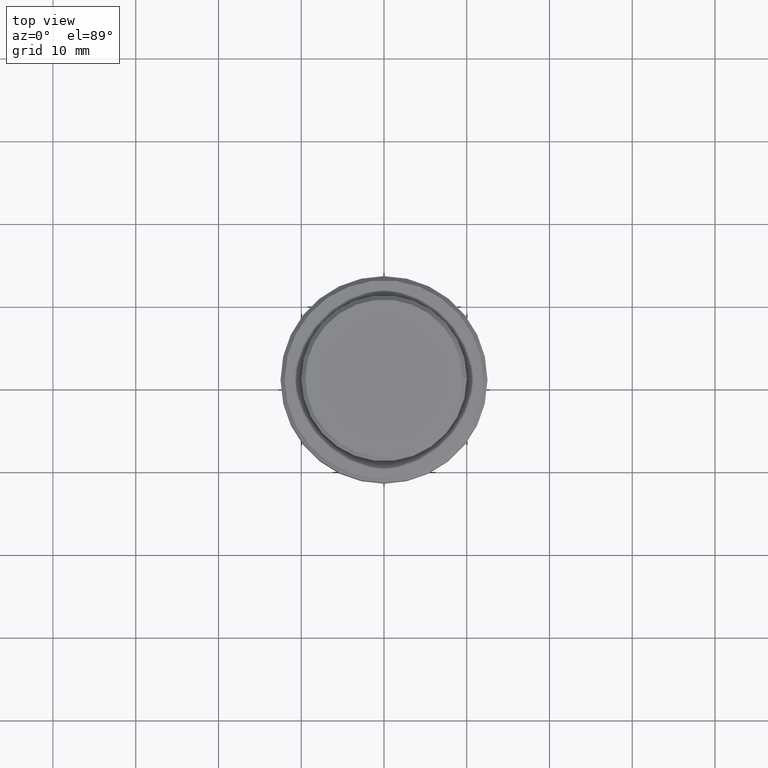
[diagram: clean part render]
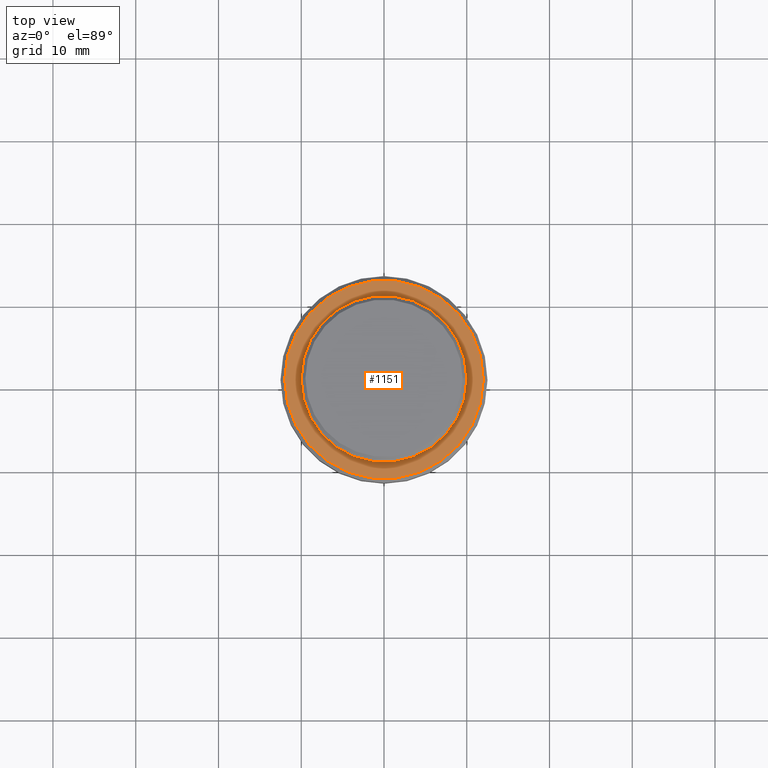
[diagram: same view with one face highlighted and labeled with its STEP entity id]
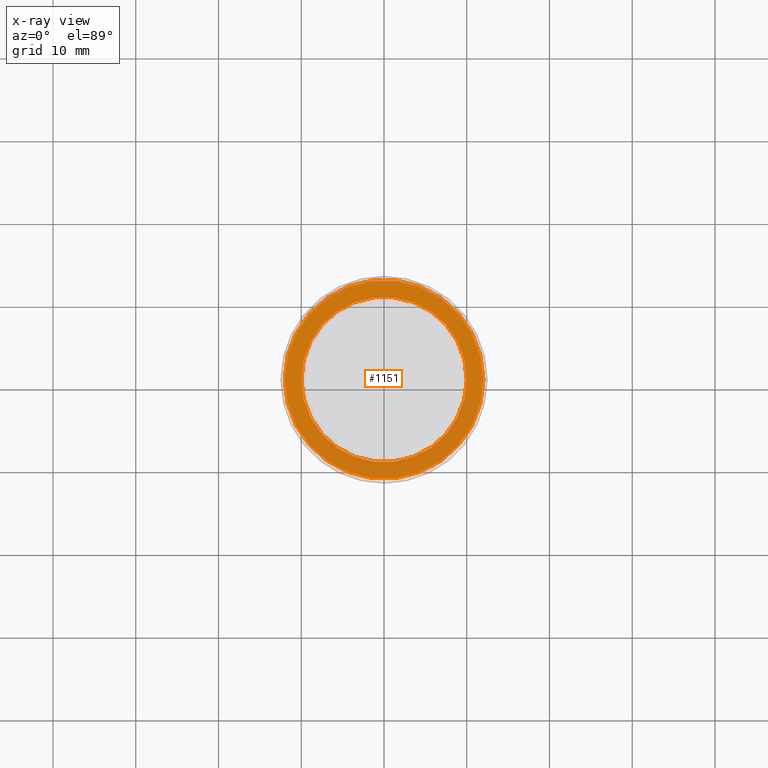
[diagram: x-ray of the same camera — body ghosted, the highlighted face saturated]
A machine part, top view. The second image highlights one B-rep face of the part: STEP entity #1151.
The next image is the same camera in x-ray: the body ghosted, the highlighted face saturated — about 0% of this face is hidden behind the body in this view.
In plain terms, the highlighted planar face has unit normal (0, -0, 1).
Its self-contained STEP definition (entity closure, byte-faithful):
#87 = DIRECTION ( 'NONE',  ( -0.000000000000000000, -0.000000000000000000, 1.000000000000000000 ) ) ;
#94 = AXIS2_PLACEMENT_3D ( 'NONE', #996, #1009, #1117 ) ;
#162 = ORIENTED_EDGE ( 'NONE', *, *, #849, .T. ) ;
#165 = VERTEX_POINT ( 'NONE', #1326 ) ;
#179 = ORIENTED_EDGE ( 'NONE', *, *, #1229, .T. ) ;
#245 = DIRECTION ( 'NONE',  ( -0.000000000000000000, -0.000000000000000000, 1.000000000000000000 ) ) ;
#310 = DIRECTION ( 'NONE',  ( 1.000000000000000000, 0.000000000000000000, 0.000000000000000000 ) ) ;
#337 = CARTESIAN_POINT ( 'NONE',  ( 0.000000000000000000, 0.000000000000000000, -9.000000000000000000 ) ) ;
#353 = ORIENTED_EDGE ( 'NONE', *, *, #357, .T. ) ;
#357 = EDGE_CURVE ( 'NONE', #403, #165, #1189, .T. ) ;
#373 = VERTEX_POINT ( 'NONE', #984 ) ;
#403 = VERTEX_POINT ( 'NONE', #1086 ) ;
#435 = EDGE_LOOP ( 'NONE', ( #353, #162 ) ) ;
#525 = CARTESIAN_POINT ( 'NONE',  ( 0.000000000000000000, 9.499999999999992895, -9.000000000000000000 ) ) ;
#651 = DIRECTION ( 'NONE',  ( 0.000000000000000000, -0.000000000000000000, 1.000000000000000000 ) ) ;
#666 = CARTESIAN_POINT ( 'NONE',  ( -11.99999999999999645, 0.000000000000000000, -9.000000000000000000 ) ) ;
#686 = DIRECTION ( 'NONE',  ( 1.000000000000000000, 0.000000000000000000, 0.000000000000000000 ) ) ;
#694 = EDGE_LOOP ( 'NONE', ( #1286, #179 ) ) ;
#746 = CIRCLE ( 'NONE', #1105, 11.99999999999999645 ) ;
#764 = DIRECTION ( 'NONE',  ( 1.000000000000000000, 0.000000000000000000, 0.000000000000000000 ) ) ;
#776 = DIRECTION ( 'NONE',  ( 1.000000000000000000, 0.000000000000000000, 0.000000000000000000 ) ) ;
#824 = EDGE_CURVE ( 'NONE', #825, #373, #746, .T. ) ;
#825 = VERTEX_POINT ( 'NONE', #666 ) ;
#849 = EDGE_CURVE ( 'NONE', #165, #403, #1398, .T. ) ;
#853 = AXIS2_PLACEMENT_3D ( 'NONE', #525, #651, #310 ) ;
#880 = FACE_OUTER_BOUND ( 'NONE', #694, .T. ) ;
#928 = CIRCLE ( 'NONE', #1076, 11.99999999999999645 ) ;
#979 = AXIS2_PLACEMENT_3D ( 'NONE', #1174, #1188, #776 ) ;
#984 = CARTESIAN_POINT ( 'NONE',  ( 11.99999999999999645, 1.500192328955507537E-15, -9.000000000000000000 ) ) ;
#996 = CARTESIAN_POINT ( 'NONE',  ( 0.000000000000000000, 0.000000000000000000, -9.000000000000000000 ) ) ;
#1009 = DIRECTION ( 'NONE',  ( 0.000000000000000000, 0.000000000000000000, -1.000000000000000000 ) ) ;
#1069 = CARTESIAN_POINT ( 'NONE',  ( 0.000000000000000000, 0.000000000000000000, -9.000000000000000000 ) ) ;
#1076 = AXIS2_PLACEMENT_3D ( 'NONE', #1069, #87, #764 ) ;
#1086 = CARTESIAN_POINT ( 'NONE',  ( 9.999999999999992895, 0.000000000000000000, -9.000000000000000000 ) ) ;
#1105 = AXIS2_PLACEMENT_3D ( 'NONE', #337, #245, #686 ) ;
#1117 = DIRECTION ( 'NONE',  ( 1.000000000000000000, 0.000000000000000000, 0.000000000000000000 ) ) ;
#1151 = ADVANCED_FACE ( 'NONE', ( #880, #1282 ), #1388, .T. ) ;
#1174 = CARTESIAN_POINT ( 'NONE',  ( 0.000000000000000000, 0.000000000000000000, -9.000000000000000000 ) ) ;
#1188 = DIRECTION ( 'NONE',  ( 0.000000000000000000, 0.000000000000000000, -1.000000000000000000 ) ) ;
#1189 = CIRCLE ( 'NONE', #979, 9.999999999999992895 ) ;
#1229 = EDGE_CURVE ( 'NONE', #373, #825, #928, .T. ) ;
#1282 = FACE_BOUND ( 'NONE', #435, .T. ) ;
#1286 = ORIENTED_EDGE ( 'NONE', *, *, #824, .T. ) ;
#1326 = CARTESIAN_POINT ( 'NONE',  ( -9.999999999999992895, 1.224646799147352468E-15, -9.000000000000000000 ) ) ;
#1388 = PLANE ( 'NONE',  #853 ) ;
#1398 = CIRCLE ( 'NONE', #94, 9.999999999999992895 ) ;